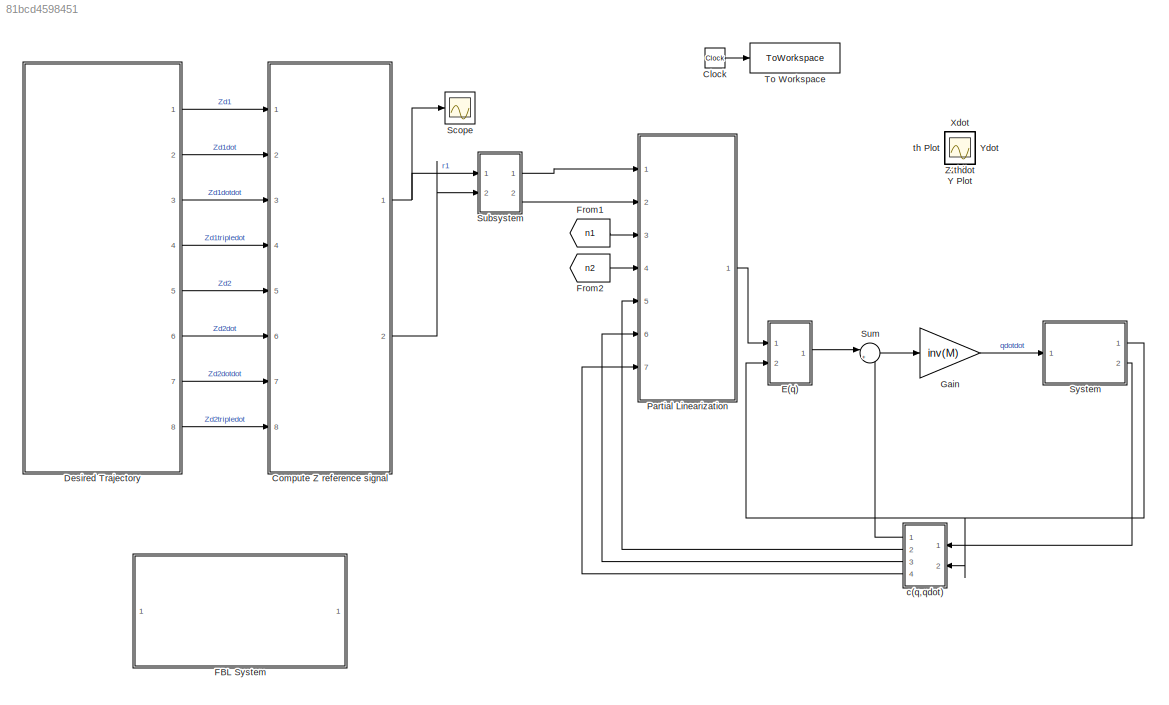
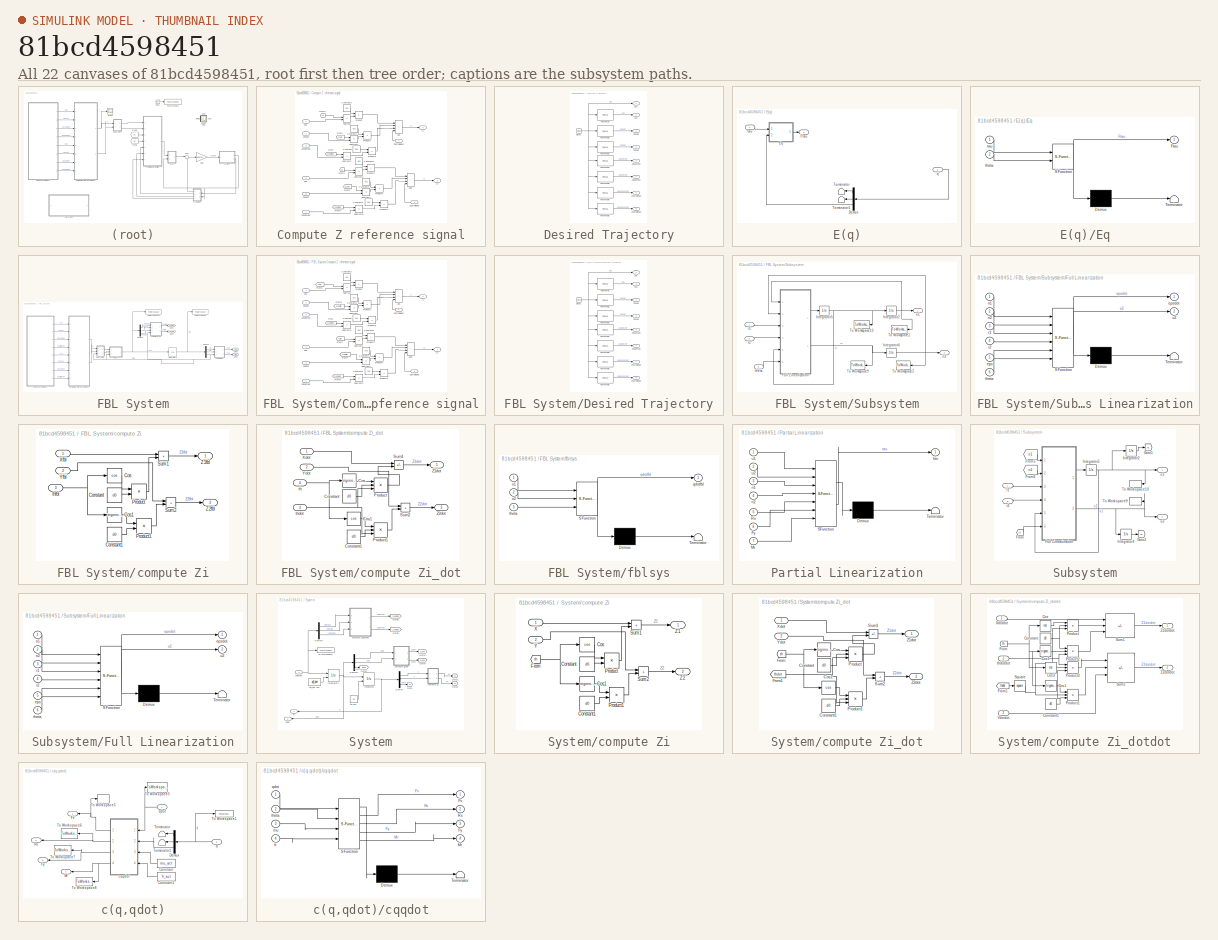
[diagram: thumbnail index - all 22 canvases of the model, root first then tree order]
MODEL slx_81bcd4598451
KIND model
CONFIG AbsTol = auto
CONFIG EnableMultiTasking = off
CONFIG FixedStep = auto
CONFIG MaxStep = auto
CONFIG MinStep = auto
CONFIG RelTol = 1e-3
CONFIG SampleTimeConstraint = Unconstrained
CONFIG SolverName = VariableStepAuto
CONFIG StartTime = 0.0
CONFIG StopTime = 50
BLOCK [Clock] Clock
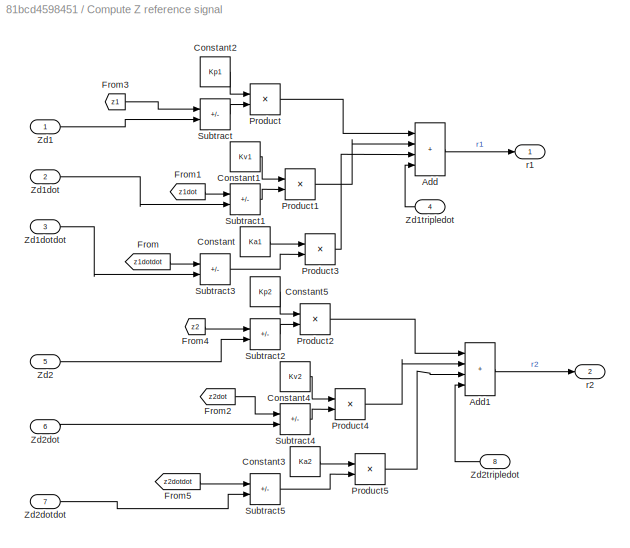
BLOCK [SubSystem] Compute Z reference signal
  Ports = [8, 2]
  RequestExecContextInheritance = off
BLOCK [Sum] Compute Z reference signal/Add
  IconShape = rectangular
  Inputs = ++++
  Ports = [4, 1]
BLOCK [Sum] Compute Z reference signal/Add1
  IconShape = rectangular
  Inputs = ++++
  Ports = [4, 1]
BLOCK [Constant] Compute Z reference signal/Constant
  Value = Ka1
BLOCK [Constant] Compute Z reference signal/Constant1
  Value = Kv1
BLOCK [Constant] Compute Z reference signal/Constant2
  Value = Kp1
BLOCK [Constant] Compute Z reference signal/Constant3
  Value = Ka2
BLOCK [Constant] Compute Z reference signal/Constant4
  Value = Kv2
BLOCK [Constant] Compute Z reference signal/Constant5
  Value = Kp2
BLOCK [From] Compute Z reference signal/From
  GotoTag = z1dotdot
  TagVisibility = global
BLOCK [From] Compute Z reference signal/From1
  GotoTag = z1dot
  TagVisibility = global
BLOCK [From] Compute Z reference signal/From2
  GotoTag = z2dot
  TagVisibility = global
BLOCK [From] Compute Z reference signal/From3
  GotoTag = z1
  TagVisibility = global
BLOCK [From] Compute Z reference signal/From4
  GotoTag = z2
  TagVisibility = global
BLOCK [From] Compute Z reference signal/From5
  GotoTag = z2dotdot
  TagVisibility = global
BLOCK [Product] Compute Z reference signal/Product
  Ports = [2, 1]
BLOCK [Product] Compute Z reference signal/Product1
  Ports = [2, 1]
BLOCK [Product] Compute Z reference signal/Product2
  Ports = [2, 1]
BLOCK [Product] Compute Z reference signal/Product3
  Ports = [2, 1]
BLOCK [Product] Compute Z reference signal/Product4
  Ports = [2, 1]
BLOCK [Product] Compute Z reference signal/Product5
  Ports = [2, 1]
BLOCK [Sum] Compute Z reference signal/Subtract
  IconShape = rectangular
  Inputs = -+
  Ports = [2, 1]
BLOCK [Sum] Compute Z reference signal/Subtract1
  IconShape = rectangular
  Inputs = -+
  Ports = [2, 1]
BLOCK [Sum] Compute Z reference signal/Subtract2
  IconShape = rectangular
  Inputs = -+
  Ports = [2, 1]
BLOCK [Sum] Compute Z reference signal/Subtract3
  IconShape = rectangular
  Inputs = -+
  Ports = [2, 1]
BLOCK [Sum] Compute Z reference signal/Subtract4
  IconShape = rectangular
  Inputs = -+
  Ports = [2, 1]
BLOCK [Sum] Compute Z reference signal/Subtract5
  IconShape = rectangular
  Inputs = -+
  Ports = [2, 1]
BLOCK [Inport] Compute Z reference signal/Zd1
BLOCK [Inport] Compute Z reference signal/Zd1dot
  Port = 2
BLOCK [Inport] Compute Z reference signal/Zd1dotdot
  Port = 3
BLOCK [Inport] Compute Z reference signal/Zd1tripledot
  Port = 4
BLOCK [Inport] Compute Z reference signal/Zd2
  Port = 5
BLOCK [Inport] Compute Z reference signal/Zd2dot
  Port = 6
BLOCK [Inport] Compute Z reference signal/Zd2dotdot
  Port = 7
BLOCK [Inport] Compute Z reference signal/Zd2tripledot
  Port = 8
BLOCK [Outport] Compute Z reference signal/r1
BLOCK [Outport] Compute Z reference signal/r2
  Port = 2
BLOCK [SubSystem] Desired Trajectory
  Ports = [0, 8]
  RequestExecContextInheritance = off
BLOCK [Clock] Desired Trajectory/Clock1
BLOCK [Polyval] Desired Trajectory/Polynomial
  Coefs = [-0.002 0.1 0.1 0]
BLOCK [Polyval] Desired Trajectory/Polynomial1
  Coefs = [-0.006 0.2 0.1]
BLOCK [Polyval] Desired Trajectory/Polynomial2
  Coefs = [1]
BLOCK [Polyval] Desired Trajectory/Polynomial3
  Coefs = [-0.012 0.2]
BLOCK [Polyval] Desired Trajectory/Polynomial4
  Coefs = [0]
BLOCK [Polyval] Desired Trajectory/Polynomial5
  Coefs = [-0.012 0.2]
BLOCK [Polyval] Desired Trajectory/Polynomial6
  Coefs = [0]
BLOCK [Outport] Desired Trajectory/Zd1
BLOCK [Outport] Desired Trajectory/Zd1dot
  Port = 2
BLOCK [Outport] Desired Trajectory/Zd1dotdot
  Port = 3
BLOCK [Outport] Desired Trajectory/Zd1tripledot
  Port = 4
BLOCK [Outport] Desired Trajectory/Zd2
  Port = 5
BLOCK [Outport] Desired Trajectory/Zd2dot
  Port = 6
BLOCK [Outport] Desired Trajectory/Zd2dotdot
  Port = 7
BLOCK [Outport] Desired Trajectory/Zd2tripledot
  Port = 8
BLOCK [SubSystem] E(q)
  Ports = [2, 1]
  RequestExecContextInheritance = off
BLOCK [Demux] E(q)/Demux
  Outputs = 3
  Ports = [1, 3]
BLOCK [SubSystem] E(q)/Eq
  ErrorFcn = Stateflow.Translate.translate
  MinAlgLoopOccurrences = on
  PermitHierarchicalResolution = ExplicitOnly
  Ports = [2, 1]
  RequestExecContextInheritance = off
  SFBlockType = MATLAB Function
  TreatAsAtomicUnit = on
BLOCK [Demux] E(q)/Eq/ Demux 
  Outputs = 1
  Ports = [1, 1]
BLOCK [S-Function] E(q)/Eq/ SFunction 
  EnableBusSupport = on
  FunctionName = sf_sfun
  Parameters = r,t
  PortCounts = [2 2]
  Ports = [2, 2]
  SFcnIsStateOwnerBlock = off
  SFunctionDeploymentMode = off
  Tag = Stateflow S-Function 1
BLOCK [Terminator] E(q)/Eq/ Terminator 
BLOCK [Outport] E(q)/Eq/Ftau
BLOCK [Inport] E(q)/Eq/tau
BLOCK [Inport] E(q)/Eq/theta
  Port = 2
BLOCK [Outport] E(q)/Ftau
BLOCK [Terminator] E(q)/Terminator
BLOCK [Terminator] E(q)/Terminator1
BLOCK [Inport] E(q)/q
  Port = 2
BLOCK [Inport] E(q)/tau
BLOCK [SubSystem] FBL System
  Ports = []
  RequestExecContextInheritance = off
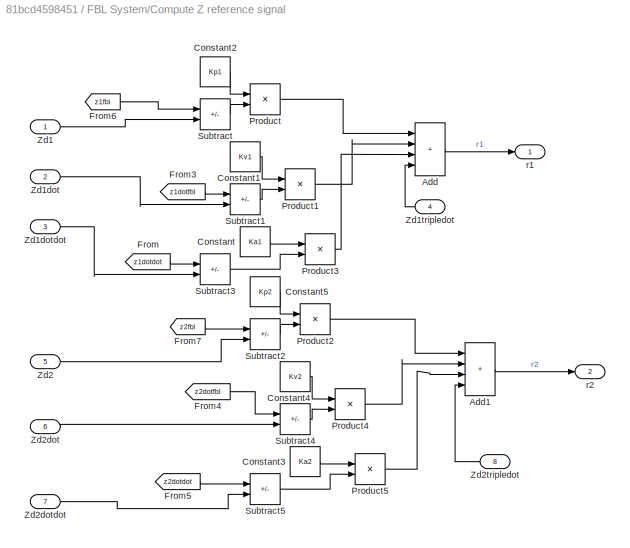
BLOCK [SubSystem] FBL System/Compute Z reference signal
  Ports = [8, 2]
  RequestExecContextInheritance = off
BLOCK [Sum] FBL System/Compute Z reference signal/Add
  IconShape = rectangular
  Inputs = ++++
  Ports = [4, 1]
BLOCK [Sum] FBL System/Compute Z reference signal/Add1
  IconShape = rectangular
  Inputs = ++++
  Ports = [4, 1]
BLOCK [Constant] FBL System/Compute Z reference signal/Constant
  Value = Ka1
BLOCK [Constant] FBL System/Compute Z reference signal/Constant1
  Value = Kv1
BLOCK [Constant] FBL System/Compute Z reference signal/Constant2
  Value = Kp1
BLOCK [Constant] FBL System/Compute Z reference signal/Constant3
  Value = Ka2
BLOCK [Constant] FBL System/Compute Z reference signal/Constant4
  Value = Kv2
BLOCK [Constant] FBL System/Compute Z reference signal/Constant5
  Value = Kp2
BLOCK [From] FBL System/Compute Z reference signal/From
  GotoTag = z1dotdot
  TagVisibility = global
BLOCK [From] FBL System/Compute Z reference signal/From3
  GotoTag = z1dotfbl
  TagVisibility = global
BLOCK [From] FBL System/Compute Z reference signal/From4
  GotoTag = z2dotfbl
  TagVisibility = global
BLOCK [From] FBL System/Compute Z reference signal/From5
  GotoTag = z2dotdot
  TagVisibility = global
BLOCK [From] FBL System/Compute Z reference signal/From6
  GotoTag = z1fbl
  TagVisibility = global
BLOCK [From] FBL System/Compute Z reference signal/From7
  GotoTag = z2fbl
  TagVisibility = global
BLOCK [Product] FBL System/Compute Z reference signal/Product
  Ports = [2, 1]
BLOCK [Product] FBL System/Compute Z reference signal/Product1
  Ports = [2, 1]
BLOCK [Product] FBL System/Compute Z reference signal/Product2
  Ports = [2, 1]
BLOCK [Product] FBL System/Compute Z reference signal/Product3
  Ports = [2, 1]
BLOCK [Product] FBL System/Compute Z reference signal/Product4
  Ports = [2, 1]
BLOCK [Product] FBL System/Compute Z reference signal/Product5
  Ports = [2, 1]
BLOCK [Sum] FBL System/Compute Z reference signal/Subtract
  IconShape = rectangular
  Inputs = -+
  Ports = [2, 1]
BLOCK [Sum] FBL System/Compute Z reference signal/Subtract1
  IconShape = rectangular
  Inputs = -+
  Ports = [2, 1]
BLOCK [Sum] FBL System/Compute Z reference signal/Subtract2
  IconShape = rectangular
  Inputs = -+
  Ports = [2, 1]
BLOCK [Sum] FBL System/Compute Z reference signal/Subtract3
  IconShape = rectangular
  Inputs = -+
  Ports = [2, 1]
BLOCK [Sum] FBL System/Compute Z reference signal/Subtract4
  IconShape = rectangular
  Inputs = -+
  Ports = [2, 1]
BLOCK [Sum] FBL System/Compute Z reference signal/Subtract5
  IconShape = rectangular
  Inputs = -+
  Ports = [2, 1]
BLOCK [Inport] FBL System/Compute Z reference signal/Zd1
BLOCK [Inport] FBL System/Compute Z reference signal/Zd1dot
  Port = 2
BLOCK [Inport] FBL System/Compute Z reference signal/Zd1dotdot
  Port = 3
BLOCK [Inport] FBL System/Compute Z reference signal/Zd1tripledot
  Port = 4
BLOCK [Inport] FBL System/Compute Z reference signal/Zd2
  Port = 5
BLOCK [Inport] FBL System/Compute Z reference signal/Zd2dot
  Port = 6
BLOCK [Inport] FBL System/Compute Z reference signal/Zd2dotdot
  Port = 7
BLOCK [Inport] FBL System/Compute Z reference signal/Zd2tripledot
  Port = 8
BLOCK [Outport] FBL System/Compute Z reference signal/r1
BLOCK [Outport] FBL System/Compute Z reference signal/r2
  Port = 2
BLOCK [Demux] FBL System/Demux2
  Outputs = 3
  Ports = [1, 3]
BLOCK [Demux] FBL System/Demux3
  Outputs = 3
  Ports = [1, 3]
BLOCK [SubSystem] FBL System/Desired Trajectory
  Ports = [0, 8]
  RequestExecContextInheritance = off
BLOCK [Clock] FBL System/Desired Trajectory/Clock1
BLOCK [Polyval] FBL System/Desired Trajectory/Polynomial
  Coefs = [-0.002 0.1 0.1 0]
BLOCK [Polyval] FBL System/Desired Trajectory/Polynomial1
  Coefs = [-0.006 0.2 0.1]
BLOCK [Polyval] FBL System/Desired Trajectory/Polynomial2
  Coefs = [1]
BLOCK [Polyval] FBL System/Desired Trajectory/Polynomial3
  Coefs = [-0.012 0.2]
BLOCK [Polyval] FBL System/Desired Trajectory/Polynomial4
  Coefs = [0]
BLOCK [Polyval] FBL System/Desired Trajectory/Polynomial5
  Coefs = [-0.012 0.2]
BLOCK [Polyval] FBL System/Desired Trajectory/Polynomial6
  Coefs = [0]
BLOCK [Outport] FBL System/Desired Trajectory/Zd1
BLOCK [Outport] FBL System/Desired Trajectory/Zd1dot
  Port = 2
BLOCK [Outport] FBL System/Desired Trajectory/Zd1dotdot
  Port = 3
BLOCK [Outport] FBL System/Desired Trajectory/Zd1tripledot
  Port = 4
BLOCK [Outport] FBL System/Desired Trajectory/Zd2
  Port = 5
BLOCK [Outport] FBL System/Desired Trajectory/Zd2dot
  Port = 6
BLOCK [Outport] FBL System/Desired Trajectory/Zd2dotdot
  Port = 7
BLOCK [Outport] FBL System/Desired Trajectory/Zd2tripledot
  Port = 8
BLOCK [Goto] FBL System/Goto1
  GotoTag = z1dotfbl
  TagVisibility = global
BLOCK [Goto] FBL System/Goto2
  GotoTag = z2dotfbl
  TagVisibility = global
BLOCK [Goto] FBL System/Goto3
  GotoTag = z1fbl
  TagVisibility = global
BLOCK [Goto] FBL System/Goto4
  GotoTag = z2fbl
  TagVisibility = global
BLOCK [Integrator] FBL System/Integrator3
  InitialCondition = q0
  Ports = [1, 1]
BLOCK [SubSystem] FBL System/Subsystem
  Ports = [3, 2]
  RequestExecContextInheritance = off
BLOCK [SubSystem] FBL System/Subsystem/Full Linearization
  ErrorFcn = Stateflow.Translate.translate
  MinAlgLoopOccurrences = on
  PermitHierarchicalResolution = ExplicitOnly
  Ports = [6, 2]
  RequestExecContextInheritance = off
  SFBlockType = MATLAB Function
  TreatAsAtomicUnit = on
BLOCK [Demux] FBL System/Subsystem/Full Linearization/ Demux 
  Outputs = 1
  Ports = [1, 1]
BLOCK [S-Function] FBL System/Subsystem/Full Linearization/ SFunction 
  EnableBusSupport = on
  FunctionName = sf_sfun
  Parameters = d0
  PortCounts = [6 3]
  Ports = [6, 3]
  SFcnIsStateOwnerBlock = off
  SFunctionDeploymentMode = off
  Tag = Stateflow S-Function 6
BLOCK [Terminator] FBL System/Subsystem/Full Linearization/ Terminator 
BLOCK [Inport] FBL System/Subsystem/Full Linearization/eps
  Port = 5
BLOCK [Outport] FBL System/Subsystem/Full Linearization/epsdot
BLOCK [Inport] FBL System/Subsystem/Full Linearization/n1
BLOCK [Inport] FBL System/Subsystem/Full Linearization/n2
  Port = 2
BLOCK [Inport] FBL System/Subsystem/Full Linearization/r1
  Port = 3
BLOCK [Inport] FBL System/Subsystem/Full Linearization/r2
  Port = 4
BLOCK [Inport] FBL System/Subsystem/Full Linearization/theta
  Port = 6
BLOCK [Outport] FBL System/Subsystem/Full Linearization/u2
  Port = 2
BLOCK [Integrator] FBL System/Subsystem/Integrator2
  Ports = [1, 1]
BLOCK [Integrator] FBL System/Subsystem/Integrator4
  Ports = [1, 1]
BLOCK [Integrator] FBL System/Subsystem/Integrator5
  Ports = [1, 1]
BLOCK [ToWorkspace] FBL System/Subsystem/To Workspace1
  FixptAsFi = on
  MaxDataPoints = inf
  Ports = [1]
  SampleTime = -1
  VariableName = n1fbl
BLOCK [ToWorkspace] FBL System/Subsystem/To Workspace10
  FixptAsFi = on
  MaxDataPoints = inf
  Ports = [1]
  SampleTime = -1
  VariableName = u1fbl
BLOCK [ToWorkspace] FBL System/Subsystem/To Workspace2
  FixptAsFi = on
  MaxDataPoints = inf
  Ports = [1]
  SampleTime = -1
  VariableName = n2fbl
BLOCK [ToWorkspace] FBL System/Subsystem/To Workspace9
  FixptAsFi = on
  MaxDataPoints = inf
  Ports = [1]
  SampleTime = -1
  VariableName = u2fbl
BLOCK [Outport] FBL System/Subsystem/n1
BLOCK [Outport] FBL System/Subsystem/n2
  Port = 2
BLOCK [Inport] FBL System/Subsystem/r1
BLOCK [Inport] FBL System/Subsystem/r2
  Port = 2
BLOCK [Inport] FBL System/Subsystem/theta
  Port = 3
BLOCK [ToWorkspace] FBL System/To Workspace13
  FixptAsFi = on
  MaxDataPoints = inf
  Ports = [1]
  SampleTime = -1
  VariableName = qdotfbl
BLOCK [ToWorkspace] FBL System/To Workspace2
  FixptAsFi = on
  MaxDataPoints = inf
  Ports = [1]
  SampleTime = -1
  VariableName = qfbl
BLOCK [SubSystem] FBL System/compute Zi
  Ports = [3, 2]
  RequestExecContextInheritance = off
BLOCK [Constant] FBL System/compute Zi/Constant
  Value = d0
BLOCK [Constant] FBL System/compute Zi/Constant1
  Value = d0
BLOCK [Trigonometry] FBL System/compute Zi/Cos
  Operator = cos
  Ports = [1, 1]
BLOCK [Trigonometry] FBL System/compute Zi/Cos1
  Ports = [1, 1]
BLOCK [Product] FBL System/compute Zi/Product
  Ports = [2, 1]
BLOCK [Product] FBL System/compute Zi/Product1
  Ports = [2, 1]
BLOCK [Sum] FBL System/compute Zi/Sum1
  IconShape = rectangular
  Ports = [2, 1]
BLOCK [Sum] FBL System/compute Zi/Sum2
  IconShape = rectangular
  Ports = [2, 1]
BLOCK [Inport] FBL System/compute Zi/Xfbl
BLOCK [Inport] FBL System/compute Zi/Yfbl
  Port = 2
BLOCK [Outport] FBL System/compute Zi/Z1fbl
BLOCK [Outport] FBL System/compute Zi/Z2fbl
  Port = 2
BLOCK [Inport] FBL System/compute Zi/thfbl
  Port = 3
BLOCK [SubSystem] FBL System/compute Zi_dot
  Ports = [4, 2]
  RequestExecContextInheritance = off
BLOCK [Constant] FBL System/compute Zi_dot/Constant
  Value = d0
BLOCK [Constant] FBL System/compute Zi_dot/Constant1
  Value = d0
BLOCK [Trigonometry] FBL System/compute Zi_dot/Cos
  Ports = [1, 1]
BLOCK [Trigonometry] FBL System/compute Zi_dot/Cos1
  Operator = cos
  Ports = [1, 1]
BLOCK [Product] FBL System/compute Zi_dot/Product
  Inputs = 3
  Ports = [3, 1]
BLOCK [Product] FBL System/compute Zi_dot/Product1
  Inputs = 3
  Ports = [3, 1]
BLOCK [Sum] FBL System/compute Zi_dot/Sum1
  IconShape = rectangular
  Inputs = +-
  Ports = [2, 1]
BLOCK [Sum] FBL System/compute Zi_dot/Sum2
  IconShape = rectangular
  Ports = [2, 1]
BLOCK [Inport] FBL System/compute Zi_dot/Xdot
BLOCK [Inport] FBL System/compute Zi_dot/Ydot
  Port = 2
BLOCK [Outport] FBL System/compute Zi_dot/Z1dot
BLOCK [Outport] FBL System/compute Zi_dot/Z2dot
  Port = 2
BLOCK [Inport] FBL System/compute Zi_dot/th
  Port = 4
BLOCK [Inport] FBL System/compute Zi_dot/thdot
  Port = 3
BLOCK [SubSystem] FBL System/fblsys
  ErrorFcn = Stateflow.Translate.translate
  PermitHierarchicalResolution = ExplicitOnly
  Ports = [3, 1]
  RequestExecContextInheritance = off
  SFBlockType = MATLAB Function
  TreatAsAtomicUnit = on
BLOCK [Demux] FBL System/fblsys/ Demux 
  Outputs = 1
  Ports = [1, 1]
BLOCK [S-Function] FBL System/fblsys/ SFunction 
  EnableBusSupport = on
  FunctionName = sf_sfun
  Parameters = d0
  PortCounts = [3 2]
  Ports = [3, 2]
  SFcnIsStateOwnerBlock = off
  SFunctionDeploymentMode = off
  Tag = Stateflow S-Function 4
BLOCK [Terminator] FBL System/fblsys/ Terminator 
BLOCK [Inport] FBL System/fblsys/n1
BLOCK [Inport] FBL System/fblsys/n2
  Port = 2
BLOCK [Outport] FBL System/fblsys/qdotfbl
BLOCK [Inport] FBL System/fblsys/theta
  Port = 3
BLOCK [From] From1
  GotoTag = n1
  TagVisibility = global
BLOCK [From] From2
  GotoTag = n2
  TagVisibility = global
BLOCK [Gain] Gain
  Gain = inv(M)
  Multiplication = Matrix(K*u)
BLOCK [SubSystem] Partial Linearization
  ErrorFcn = Stateflow.Translate.translate
  MinAlgLoopOccurrences = on
  PermitHierarchicalResolution = ExplicitOnly
  Ports = [7, 1]
  RequestExecContextInheritance = off
  SFBlockType = MATLAB Function
  TreatAsAtomicUnit = on
BLOCK [Demux] Partial Linearization/ Demux 
  Outputs = 1
  Ports = [1, 1]
BLOCK [S-Function] Partial Linearization/ SFunction 
  EnableBusSupport = on
  FunctionName = sf_sfun
  Parameters = I,d0,m,r,t
  PortCounts = [7 2]
  Ports = [7, 2]
  SFcnIsStateOwnerBlock = off
  SFunctionDeploymentMode = off
  Tag = Stateflow S-Function 3
BLOCK [Terminator] Partial Linearization/ Terminator 
BLOCK [Inport] Partial Linearization/Fy
  Port = 6
BLOCK [Inport] Partial Linearization/Mr
  Port = 7
BLOCK [Inport] Partial Linearization/Rx
  Port = 5
BLOCK [Inport] Partial Linearization/n1
  Port = 3
BLOCK [Inport] Partial Linearization/n2
  Port = 4
BLOCK [Outport] Partial Linearization/tau
BLOCK [Inport] Partial Linearization/u1
BLOCK [Inport] Partial Linearization/u2
  Port = 2
BLOCK [Scope] Scope
  Floating = off
  NumInputPorts = 1
  Ports = [1]
  ScopeSpecificationString = Simulink.scopes.TimeScopeBlockCfg('CurrentConfiguration', extmgr.ConfigurationSet(extmgr.Configuration('Core','General UI',true),extmgr.Configuration('Core','Source UI',true),extmgr.Configuration('Sources','WiredSimulink',true,'DataLoggingVariableName','ScopeData3'),extmgr.Configuration('Visuals','Time Domain',true,'SerializedDisplays',{struct('MinYLimReal','-27.35782','MaxYLimReal','219.81849','Y...<+1371ch>
BLOCK [SubSystem] Subsystem
  Ports = [2, 2]
  RequestExecContextInheritance = off
BLOCK [From] Subsystem/From
  GotoTag = th
  TagVisibility = global
BLOCK [From] Subsystem/From5
  GotoTag = n1
  TagVisibility = global
BLOCK [From] Subsystem/From6
  GotoTag = n2
  TagVisibility = global
BLOCK [SubSystem] Subsystem/Full Linearization
  ErrorFcn = Stateflow.Translate.translate
  MinAlgLoopOccurrences = on
  PermitHierarchicalResolution = ExplicitOnly
  Ports = [6, 2]
  RequestExecContextInheritance = off
  SFBlockType = MATLAB Function
  TreatAsAtomicUnit = on
BLOCK [Demux] Subsystem/Full Linearization/ Demux 
  Outputs = 1
  Ports = [1, 1]
BLOCK [S-Function] Subsystem/Full Linearization/ SFunction 
  EnableBusSupport = on
  FunctionName = sf_sfun
  Parameters = d0
  PortCounts = [6 3]
  Ports = [6, 3]
  SFcnIsStateOwnerBlock = off
  SFunctionDeploymentMode = off
  Tag = Stateflow S-Function 5
BLOCK [Terminator] Subsystem/Full Linearization/ Terminator 
BLOCK [Inport] Subsystem/Full Linearization/eps
  Port = 5
BLOCK [Outport] Subsystem/Full Linearization/epsdot
BLOCK [Inport] Subsystem/Full Linearization/n1
BLOCK [Inport] Subsystem/Full Linearization/n2
  Port = 2
BLOCK [Inport] Subsystem/Full Linearization/r1
  Port = 3
BLOCK [Inport] Subsystem/Full Linearization/r2
  Port = 4
BLOCK [Inport] Subsystem/Full Linearization/theta
  Port = 6
BLOCK [Outport] Subsystem/Full Linearization/u2
  Port = 2
BLOCK [Goto] Subsystem/Goto1
  GotoTag = n1
  TagVisibility = global
BLOCK [Goto] Subsystem/Goto2
  GotoTag = n2
  TagVisibility = global
BLOCK [Integrator] Subsystem/Integrator2
  Ports = [1, 1]
BLOCK [Integrator] Subsystem/Integrator4
  Ports = [1, 1]
BLOCK [Integrator] Subsystem/Integrator5
  Ports = [1, 1]
BLOCK [ToWorkspace] Subsystem/To Workspace10
  FixptAsFi = on
  MaxDataPoints = inf
  Ports = [1]
  SampleTime = -1
  VariableName = u1
BLOCK [ToWorkspace] Subsystem/To Workspace9
  FixptAsFi = on
  MaxDataPoints = inf
  Ports = [1]
  SampleTime = -1
  VariableName = u2
BLOCK [Inport] Subsystem/r1
BLOCK [Inport] Subsystem/r2
  Port = 2
BLOCK [Outport] Subsystem/u1
BLOCK [Outport] Subsystem/u2
  Port = 2
BLOCK [Sum] Sum
  Inputs = |+-
  Ports = [2, 1]
BLOCK [SubSystem] System
  Ports = [1, 2]
  RequestExecContextInheritance = off
BLOCK [Demux] System/Demux
  Outputs = 3
  Ports = [1, 3]
BLOCK [Demux] System/Demux1
  Outputs = 3
  Ports = [1, 3]
BLOCK [Demux] System/Demux4
  Outputs = 3
  Ports = [1, 3]
BLOCK [Goto] System/Goto
  GotoTag = th
  TagVisibility = global
BLOCK [Goto] System/Goto1
  GotoTag = z1
  TagVisibility = global
BLOCK [Goto] System/Goto2
  GotoTag = z2
  TagVisibility = global
BLOCK [Goto] System/Goto3
  GotoTag = z1dot
  TagVisibility = global
BLOCK [Goto] System/Goto4
  GotoTag = z2dot
  TagVisibility = global
BLOCK [Goto] System/Goto5
  GotoTag = z1dotdot
  TagVisibility = global
BLOCK [Goto] System/Goto6
  GotoTag = z2dotdot
  TagVisibility = global
BLOCK [Goto] System/Goto7
  GotoTag = thdot
  TagVisibility = global
BLOCK [Integrator] System/Integrator
  InitialConditionSource = external
  Ports = [2, 1]
BLOCK [Integrator] System/Integrator1
  InitialConditionSource = external
  Ports = [2, 1]
BLOCK [ToWorkspace] System/To Workspace4
  FixptAsFi = on
  MaxDataPoints = inf
  Ports = [1]
  SampleTime = -1
  VariableName = qdotdot
BLOCK [SubSystem] System/compute Zi
  Ports = [2, 2]
  RequestExecContextInheritance = off
BLOCK [Constant] System/compute Zi/Constant
  Value = d0
BLOCK [Constant] System/compute Zi/Constant1
  Value = d0
BLOCK [Trigonometry] System/compute Zi/Cos
  Operator = cos
  Ports = [1, 1]
BLOCK [Trigonometry] System/compute Zi/Cos1
  Ports = [1, 1]
BLOCK [From] System/compute Zi/From
  GotoTag = th
  TagVisibility = global
BLOCK [Product] System/compute Zi/Product
  Ports = [2, 1]
BLOCK [Product] System/compute Zi/Product1
  Ports = [2, 1]
BLOCK [Sum] System/compute Zi/Sum1
  IconShape = rectangular
  Ports = [2, 1]
BLOCK [Sum] System/compute Zi/Sum2
  IconShape = rectangular
  Ports = [2, 1]
BLOCK [Inport] System/compute Zi/X
BLOCK [Inport] System/compute Zi/Y
  Port = 2
BLOCK [Outport] System/compute Zi/Z1
BLOCK [Outport] System/compute Zi/Z2
  Port = 2
BLOCK [SubSystem] System/compute Zi_dot
  Ports = [2, 2]
  RequestExecContextInheritance = off
BLOCK [Constant] System/compute Zi_dot/Constant
  Value = d0
BLOCK [Constant] System/compute Zi_dot/Constant1
  Value = d0
BLOCK [Trigonometry] System/compute Zi_dot/Cos
  Ports = [1, 1]
BLOCK [Trigonometry] System/compute Zi_dot/Cos1
  Operator = cos
  Ports = [1, 1]
BLOCK [From] System/compute Zi_dot/From
  GotoTag = th
  TagVisibility = global
BLOCK [From] System/compute Zi_dot/From1
  GotoTag = thdot
  TagVisibility = global
BLOCK [Product] System/compute Zi_dot/Product
  Inputs = 3
  Ports = [3, 1]
BLOCK [Product] System/compute Zi_dot/Product1
  Inputs = 3
  Ports = [3, 1]
BLOCK [Sum] System/compute Zi_dot/Sum1
  IconShape = rectangular
  Inputs = +-
  Ports = [2, 1]
BLOCK [Sum] System/compute Zi_dot/Sum2
  IconShape = rectangular
  Ports = [2, 1]
BLOCK [Inport] System/compute Zi_dot/Xdot
BLOCK [Inport] System/compute Zi_dot/Ydot
  Port = 2
BLOCK [Outport] System/compute Zi_dot/Z1dot
BLOCK [Outport] System/compute Zi_dot/Z2dot
  Port = 2
BLOCK [SubSystem] System/compute Zi_dotdot
  Ports = [3, 2]
  RequestExecContextInheritance = off
BLOCK [Constant] System/compute Zi_dotdot/Constant
  Value = d0
BLOCK [Constant] System/compute Zi_dotdot/Constant1
  Value = d0
BLOCK [Trigonometry] System/compute Zi_dotdot/Cos
  Operator = cos
  Ports = [1, 1]
BLOCK [Trigonometry] System/compute Zi_dotdot/Cos1
  Ports = [1, 1]
BLOCK [Trigonometry] System/compute Zi_dotdot/Cos2
  Ports = [1, 1]
BLOCK [Trigonometry] System/compute Zi_dotdot/Cos3
  Operator = cos
  Ports = [1, 1]
BLOCK [From] System/compute Zi_dotdot/From
  GotoTag = th
  TagVisibility = global
BLOCK [From] System/compute Zi_dotdot/From1
  GotoTag = thdot
  TagVisibility = global
BLOCK [Product] System/compute Zi_dotdot/Product
  Inputs = 3
  Ports = [3, 1]
BLOCK [Product] System/compute Zi_dotdot/Product1
  Inputs = 3
  Ports = [3, 1]
BLOCK [Product] System/compute Zi_dotdot/Product2
  Inputs = 3
  Ports = [3, 1]
BLOCK [Product] System/compute Zi_dotdot/Product3
  Inputs = 3
  Ports = [3, 1]
BLOCK [Math] System/compute Zi_dotdot/Square
  Operator = square
  Ports = [1, 1]
BLOCK [Sum] System/compute Zi_dotdot/Sum1
  IconShape = rectangular
  Inputs = +--
  Ports = [3, 1]
BLOCK [Sum] System/compute Zi_dotdot/Sum2
  IconShape = rectangular
  Inputs = +-+
  Ports = [3, 1]
BLOCK [Inport] System/compute Zi_dotdot/Xdotdot
BLOCK [Inport] System/compute Zi_dotdot/Ydotdot
  Port = 2
BLOCK [Outport] System/compute Zi_dotdot/Z1dotdot
BLOCK [Outport] System/compute Zi_dotdot/Z2dotdot
  Port = 2
BLOCK [Inport] System/compute Zi_dotdot/thdotdot
  Port = 3
BLOCK [Outport] System/q
BLOCK [Constant] System/q0 3x1
  Value = q0
BLOCK [Constant] System/q0_dot 3x2
  Value = q0_dot
BLOCK [Outport] System/qdot
  Port = 2
BLOCK [Inport] System/qdotdot
BLOCK [ToWorkspace] To Workspace
  FixptAsFi = on
  MaxDataPoints = inf
  Ports = [1]
  SampleTime = -1
  VariableName = t
BLOCK [Scope] X Plot
  Floating = off
  IOType = viewer
  NumInputPorts = 1
  Ports = []
  ScopeSpecificationString = Simulink.scopes.TimeScopeBlockCfg('CurrentConfiguration', extmgr.ConfigurationSet(extmgr.Configuration('Core','General UI',true),extmgr.Configuration('Core','Source UI',true),extmgr.Configuration('Sources','WiredSimulink',true),extmgr.Configuration('Visuals','Time Domain',true,'SerializedDisplays',{struct('MinYLimReal','-5340.5903','MaxYLimReal','1077.6371','YLabelReal','','MinYLimMag','  0.00000'...<+1460ch>
BLOCK [Scope] Xdot
  Floating = off
  IOType = viewer
  NumInputPorts = 1
  Ports = []
  ScopeSpecificationString = Simulink.scopes.TimeScopeBlockCfg('CurrentConfiguration', extmgr.ConfigurationSet(extmgr.Configuration('Core','General UI',true),extmgr.Configuration('Core','Source UI',true),extmgr.Configuration('Sources','WiredSimulink',true,'DataLoggingVariableName','ScopeData3'),extmgr.Configuration('Visuals','Time Domain',true,'SerializedDisplays',{struct('MinYLimReal','-12.71031','MaxYLimReal','30.58391','YL...<+1378ch>
BLOCK [Scope] Y Plot
  Floating = off
  IOType = viewer
  NumInputPorts = 1
  Ports = []
  ScopeSpecificationString = Simulink.scopes.TimeScopeBlockCfg('CurrentConfiguration', extmgr.ConfigurationSet(extmgr.Configuration('Core','General UI',true),extmgr.Configuration('Core','Source UI',true),extmgr.Configuration('Sources','WiredSimulink',true,'DataLoggingVariableName','ScopeData1'),extmgr.Configuration('Visuals','Time Domain',true,'SerializedDisplays',{struct('MinYLimReal','-129.67354','MaxYLimReal','1165.57949',...<+1495ch>
BLOCK [Scope] Ydot
  Floating = off
  IOType = viewer
  NumInputPorts = 1
  Ports = []
  ScopeSpecificationString = Simulink.scopes.TimeScopeBlockCfg('CurrentConfiguration', extmgr.ConfigurationSet(extmgr.Configuration('Core','General UI',true),extmgr.Configuration('Core','Source UI',true),extmgr.Configuration('Sources','WiredSimulink',true,'DataLoggingVariableName','ScopeData4'),extmgr.Configuration('Visuals','Time Domain',true,'SerializedDisplays',{struct('MinYLimReal','-48.35617','MaxYLimReal','46.35272','YL...<+1405ch>
BLOCK [Scope] Z1
  Floating = off
  IOType = viewer
  NumInputPorts = 1
  Ports = []
  ScopeSpecificationString = Simulink.scopes.TimeScopeBlockCfg('CurrentConfiguration', extmgr.ConfigurationSet(extmgr.Configuration('Core','General UI',true),extmgr.Configuration('Core','Source UI',true),extmgr.Configuration('Sources','WiredSimulink',true,'DataLoggingVariableName','ScopeData2'),extmgr.Configuration('Visuals','Time Domain',true,'SerializedDisplays',{struct('MinYLimReal','-74.34126','MaxYLimReal','669.07133','Y...<+1584ch>
BLOCK [Scope] Z2
  Floating = off
  IOType = viewer
  NumInputPorts = 1
  Ports = []
  ScopeSpecificationString = Simulink.scopes.TimeScopeBlockCfg('CurrentConfiguration', extmgr.ConfigurationSet(extmgr.Configuration('Core','General UI',true),extmgr.Configuration('Core','Source UI',true),extmgr.Configuration('Sources','WiredSimulink',true,'DataLoggingVariableName','ScopeData1'),extmgr.Configuration('Visuals','Time Domain',true,'SerializedDisplays',{struct('MinYLimReal','-10.00000','MaxYLimReal','59.0113','YLa...<+1513ch>
BLOCK [SubSystem] c(q,qdot)
  Ports = [2, 4]
  RequestExecContextInheritance = off
BLOCK [Constant] c(q,qdot)/Constant
  Value = mu_act
BLOCK [Constant] c(q,qdot)/Constant1
  Value = fr_act
BLOCK [Demux] c(q,qdot)/Demux
  Outputs = 3
  Ports = [1, 3]
BLOCK [Outport] c(q,qdot)/Fv
BLOCK [Outport] c(q,qdot)/Fy
  Port = 3
BLOCK [Outport] c(q,qdot)/Mr
  Port = 4
BLOCK [Outport] c(q,qdot)/Rx
  Port = 2
BLOCK [Terminator] c(q,qdot)/Terminator
BLOCK [Terminator] c(q,qdot)/Terminator1
BLOCK [ToWorkspace] c(q,qdot)/To Workspace1
  FixptAsFi = on
  MaxDataPoints = inf
  Ports = [1]
  SampleTime = -1
  VariableName = q
BLOCK [ToWorkspace] c(q,qdot)/To Workspace3
  FixptAsFi = on
  MaxDataPoints = inf
  Ports = [1]
  SampleTime = -1
  VariableName = qdot
BLOCK [ToWorkspace] c(q,qdot)/To Workspace5
  FixptAsFi = on
  MaxDataPoints = inf
  Ports = [1]
  SampleTime = -1
  VariableName = Fv
BLOCK [ToWorkspace] c(q,qdot)/To Workspace6
  FixptAsFi = on
  MaxDataPoints = inf
  Ports = [1]
  SampleTime = -1
  VariableName = Rx
BLOCK [ToWorkspace] c(q,qdot)/To Workspace7
  FixptAsFi = on
  MaxDataPoints = inf
  Ports = [1]
  SampleTime = -1
  VariableName = Fy
BLOCK [ToWorkspace] c(q,qdot)/To Workspace8
  FixptAsFi = on
  MaxDataPoints = inf
  Ports = [1]
  SampleTime = -1
  VariableName = Mr
BLOCK [SubSystem] c(q,qdot)/cqqdot
  ErrorFcn = Stateflow.Translate.translate
  PermitHierarchicalResolution = ExplicitOnly
  Ports = [4, 4]
  RequestExecContextInheritance = off
  SFBlockType = MATLAB Function
  TreatAsAtomicUnit = on
BLOCK [Demux] c(q,qdot)/cqqdot/ Demux 
  Outputs = 1
  Ports = [1, 1]
BLOCK [S-Function] c(q,qdot)/cqqdot/ SFunction 
  EnableBusSupport = on
  FunctionName = sf_sfun
  Parameters = a,b,g,m,t
  PortCounts = [4 5]
  Ports = [4, 5]
  SFcnIsStateOwnerBlock = off
  SFunctionDeploymentMode = off
  Tag = Stateflow S-Function 2
BLOCK [Terminator] c(q,qdot)/cqqdot/ Terminator 
BLOCK [Outport] c(q,qdot)/cqqdot/Fv
BLOCK [Outport] c(q,qdot)/cqqdot/Fy
  Port = 3
BLOCK [Outport] c(q,qdot)/cqqdot/Mr
  Port = 4
BLOCK [Outport] c(q,qdot)/cqqdot/Rx
  Port = 2
BLOCK [Inport] c(q,qdot)/cqqdot/fr
  Port = 4
BLOCK [Inport] c(q,qdot)/cqqdot/mu
  Port = 3
BLOCK [Inport] c(q,qdot)/cqqdot/qdot
BLOCK [Inport] c(q,qdot)/cqqdot/theta
  Port = 2
BLOCK [Inport] c(q,qdot)/q
  Port = 2
BLOCK [Inport] c(q,qdot)/qdot
BLOCK [Scope] th Plot
  Floating = off
  IOType = viewer
  NumInputPorts = 1
  Ports = []
  ScopeSpecificationString = Simulink.scopes.TimeScopeBlockCfg('CurrentConfiguration', extmgr.ConfigurationSet(extmgr.Configuration('Core','General UI',true),extmgr.Configuration('Core','Source UI',true),extmgr.Configuration('Sources','WiredSimulink',true,'DataLoggingVariableName','ScopeData2'),extmgr.Configuration('Visuals','Time Domain',true,'SerializedDisplays',{struct('MinYLimReal','-0.13021','MaxYLimReal','0.01447','YLab...<+1459ch>
BLOCK [Scope] thdot
  Floating = off
  IOType = viewer
  NumInputPorts = 1
  Ports = []
  ScopeSpecificationString = Simulink.scopes.TimeScopeBlockCfg('CurrentConfiguration', extmgr.ConfigurationSet(extmgr.Configuration('Core','General UI',true),extmgr.Configuration('Core','Source UI',true),extmgr.Configuration('Sources','WiredSimulink',true,'DataLoggingVariableName','ScopeData5'),extmgr.Configuration('Visuals','Time Domain',true,'SerializedDisplays',{struct('MinYLimReal','-137.39975','MaxYLimReal','80.83301','Y...<+1388ch>
LINE Clock:1 -> To Workspace:1
LINE Compute Z reference signal/Add1:1 -> Compute Z reference signal/r2:1
LINE Compute Z reference signal/Add:1 -> Compute Z reference signal/r1:1
LINE Compute Z reference signal/Constant1:1 -> Compute Z reference signal/Product1:1
LINE Compute Z reference signal/Constant2:1 -> Compute Z reference signal/Product:1
LINE Compute Z reference signal/Constant3:1 -> Compute Z reference signal/Product5:1
LINE Compute Z reference signal/Constant4:1 -> Compute Z reference signal/Product4:1
LINE Compute Z reference signal/Constant5:1 -> Compute Z reference signal/Product2:1
LINE Compute Z reference signal/Constant:1 -> Compute Z reference signal/Product3:1
LINE Compute Z reference signal/From1:1 -> Compute Z reference signal/Subtract1:1
LINE Compute Z reference signal/From2:1 -> Compute Z reference signal/Subtract4:1
LINE Compute Z reference signal/From3:1 -> Compute Z reference signal/Subtract:1
LINE Compute Z reference signal/From4:1 -> Compute Z reference signal/Subtract2:1
LINE Compute Z reference signal/From5:1 -> Compute Z reference signal/Subtract5:1
LINE Compute Z reference signal/From:1 -> Compute Z reference signal/Subtract3:1
LINE Compute Z reference signal/Product1:1 -> Compute Z reference signal/Add:2
LINE Compute Z reference signal/Product2:1 -> Compute Z reference signal/Add1:1
LINE Compute Z reference signal/Product3:1 -> Compute Z reference signal/Add:3
LINE Compute Z reference signal/Product4:1 -> Compute Z reference signal/Add1:2
LINE Compute Z reference signal/Product5:1 -> Compute Z reference signal/Add1:3
LINE Compute Z reference signal/Product:1 -> Compute Z reference signal/Add:1
LINE Compute Z reference signal/Subtract1:1 -> Compute Z reference signal/Product1:2
LINE Compute Z reference signal/Subtract2:1 -> Compute Z reference signal/Product2:2
LINE Compute Z reference signal/Subtract3:1 -> Compute Z reference signal/Product3:2
LINE Compute Z reference signal/Subtract4:1 -> Compute Z reference signal/Product4:2
LINE Compute Z reference signal/Subtract5:1 -> Compute Z reference signal/Product5:2
LINE Compute Z reference signal/Subtract:1 -> Compute Z reference signal/Product:2
LINE Compute Z reference signal/Zd1:1 -> Compute Z reference signal/Subtract:2
LINE Compute Z reference signal/Zd1dot:1 -> Compute Z reference signal/Subtract1:2
LINE Compute Z reference signal/Zd1dotdot:1 -> Compute Z reference signal/Subtract3:2
LINE Compute Z reference signal/Zd1tripledot:1 -> Compute Z reference signal/Add:4
LINE Compute Z reference signal/Zd2:1 -> Compute Z reference signal/Subtract2:2
LINE Compute Z reference signal/Zd2dot:1 -> Compute Z reference signal/Subtract4:2
LINE Compute Z reference signal/Zd2dotdot:1 -> Compute Z reference signal/Subtract5:2
LINE Compute Z reference signal/Zd2tripledot:1 -> Compute Z reference signal/Add1:4
NET Compute Z reference signal:1 -> Scope:1, Subsystem:1
LINE Compute Z reference signal:2 -> Subsystem:2
NET Desired Trajectory/Clock1:1 -> Desired Trajectory/Polynomial1:1, Desired Trajectory/Polynomial2:1, Desired Trajectory/Polynomial3:1, Desired Trajectory/Polynomial4:1, Desired Trajectory/Polynomial5:1, Desired Trajectory/Polynomial6:1, Desired Trajectory/Polynomial:1, Desired Trajectory/Zd1:1
LINE Desired Trajectory/Polynomial1:1 -> Desired Trajectory/Zd2dot:1
LINE Desired Trajectory/Polynomial2:1 -> Desired Trajectory/Zd1dot:1
LINE Desired Trajectory/Polynomial3:1 -> Desired Trajectory/Zd2dotdot:1
LINE Desired Trajectory/Polynomial4:1 -> Desired Trajectory/Zd1dotdot:1
LINE Desired Trajectory/Polynomial5:1 -> Desired Trajectory/Zd2tripledot:1
LINE Desired Trajectory/Polynomial6:1 -> Desired Trajectory/Zd1tripledot:1
LINE Desired Trajectory/Polynomial:1 -> Desired Trajectory/Zd2:1
LINE Desired Trajectory:1 -> Compute Z reference signal:1
LINE Desired Trajectory:2 -> Compute Z reference signal:2
LINE Desired Trajectory:3 -> Compute Z reference signal:3
LINE Desired Trajectory:4 -> Compute Z reference signal:4
LINE Desired Trajectory:5 -> Compute Z reference signal:5
LINE Desired Trajectory:6 -> Compute Z reference signal:6
LINE Desired Trajectory:7 -> Compute Z reference signal:7
LINE Desired Trajectory:8 -> Compute Z reference signal:8
LINE E(q)/Demux:1 -> E(q)/Terminator:1
LINE E(q)/Demux:2 -> E(q)/Terminator1:1
LINE E(q)/Demux:3 -> E(q)/Eq:2
LINE E(q)/Eq:1 -> E(q)/Ftau:1
LINE E(q)/q:1 -> E(q)/Demux:1
LINE E(q)/tau:1 -> E(q)/Eq:1
LINE E(q):1 -> Sum:1
LINE FBL System/Compute Z reference signal/Add1:1 -> FBL System/Compute Z reference signal/r2:1
LINE FBL System/Compute Z reference signal/Add:1 -> FBL System/Compute Z reference signal/r1:1
LINE FBL System/Compute Z reference signal/Constant1:1 -> FBL System/Compute Z reference signal/Product1:1
LINE FBL System/Compute Z reference signal/Constant2:1 -> FBL System/Compute Z reference signal/Product:1
LINE FBL System/Compute Z reference signal/Constant3:1 -> FBL System/Compute Z reference signal/Product5:1
LINE FBL System/Compute Z reference signal/Constant4:1 -> FBL System/Compute Z reference signal/Product4:1
LINE FBL System/Compute Z reference signal/Constant5:1 -> FBL System/Compute Z reference signal/Product2:1
LINE FBL System/Compute Z reference signal/Constant:1 -> FBL System/Compute Z reference signal/Product3:1
LINE FBL System/Compute Z reference signal/From3:1 -> FBL System/Compute Z reference signal/Subtract1:1
LINE FBL System/Compute Z reference signal/From4:1 -> FBL System/Compute Z reference signal/Subtract4:1
LINE FBL System/Compute Z reference signal/From5:1 -> FBL System/Compute Z reference signal/Subtract5:1
LINE FBL System/Compute Z reference signal/From6:1 -> FBL System/Compute Z reference signal/Subtract:1
LINE FBL System/Compute Z reference signal/From7:1 -> FBL System/Compute Z reference signal/Subtract2:1
LINE FBL System/Compute Z reference signal/From:1 -> FBL System/Compute Z reference signal/Subtract3:1
LINE FBL System/Compute Z reference signal/Product1:1 -> FBL System/Compute Z reference signal/Add:2
LINE FBL System/Compute Z reference signal/Product2:1 -> FBL System/Compute Z reference signal/Add1:1
LINE FBL System/Compute Z reference signal/Product3:1 -> FBL System/Compute Z reference signal/Add:3
LINE FBL System/Compute Z reference signal/Product4:1 -> FBL System/Compute Z reference signal/Add1:2
LINE FBL System/Compute Z reference signal/Product5:1 -> FBL System/Compute Z reference signal/Add1:3
LINE FBL System/Compute Z reference signal/Product:1 -> FBL System/Compute Z reference signal/Add:1
LINE FBL System/Compute Z reference signal/Subtract1:1 -> FBL System/Compute Z reference signal/Product1:2
LINE FBL System/Compute Z reference signal/Subtract2:1 -> FBL System/Compute Z reference signal/Product2:2
LINE FBL System/Compute Z reference signal/Subtract3:1 -> FBL System/Compute Z reference signal/Product3:2
LINE FBL System/Compute Z reference signal/Subtract4:1 -> FBL System/Compute Z reference signal/Product4:2
LINE FBL System/Compute Z reference signal/Subtract5:1 -> FBL System/Compute Z reference signal/Product5:2
LINE FBL System/Compute Z reference signal/Subtract:1 -> FBL System/Compute Z reference signal/Product:2
LINE FBL System/Compute Z reference signal/Zd1:1 -> FBL System/Compute Z reference signal/Subtract:2
LINE FBL System/Compute Z reference signal/Zd1dot:1 -> FBL System/Compute Z reference signal/Subtract1:2
LINE FBL System/Compute Z reference signal/Zd1dotdot:1 -> FBL System/Compute Z reference signal/Subtract3:2
LINE FBL System/Compute Z reference signal/Zd1tripledot:1 -> FBL System/Compute Z reference signal/Add:4
LINE FBL System/Compute Z reference signal/Zd2:1 -> FBL System/Compute Z reference signal/Subtract2:2
LINE FBL System/Compute Z reference signal/Zd2dot:1 -> FBL System/Compute Z reference signal/Subtract4:2
LINE FBL System/Compute Z reference signal/Zd2dotdot:1 -> FBL System/Compute Z reference signal/Subtract5:2
LINE FBL System/Compute Z reference signal/Zd2tripledot:1 -> FBL System/Compute Z reference signal/Add1:4
LINE FBL System/Compute Z reference signal:1 -> FBL System/Subsystem:1
LINE FBL System/Compute Z reference signal:2 -> FBL System/Subsystem:2
LINE FBL System/Demux2:1 -> FBL System/compute Zi_dot:1
LINE FBL System/Demux2:2 -> FBL System/compute Zi_dot:2
LINE FBL System/Demux2:3 -> FBL System/compute Zi_dot:3
LINE FBL System/Demux3:1 -> FBL System/compute Zi:1
LINE FBL System/Demux3:2 -> FBL System/compute Zi:2
NET FBL System/Demux3:3 -> FBL System/Subsystem:3, FBL System/compute Zi:3, FBL System/compute Zi_dot:4, FBL System/fblsys:3
NET FBL System/Desired Trajectory/Clock1:1 -> FBL System/Desired Trajectory/Polynomial1:1, FBL System/Desired Trajectory/Polynomial2:1, FBL System/Desired Trajectory/Polynomial3:1, FBL System/Desired Trajectory/Polynomial4:1, FBL System/Desired Trajectory/Polynomial5:1, FBL System/Desired Trajectory/Polynomial6:1, FBL System/Desired Trajectory/Polynomial:1, FBL System/Desired Trajectory/Zd1:1
LINE FBL System/Desired Trajectory/Polynomial1:1 -> FBL System/Desired Trajectory/Zd2dot:1
LINE FBL System/Desired Trajectory/Polynomial2:1 -> FBL System/Desired Trajectory/Zd1dot:1
LINE FBL System/Desired Trajectory/Polynomial3:1 -> FBL System/Desired Trajectory/Zd2dotdot:1
LINE FBL System/Desired Trajectory/Polynomial4:1 -> FBL System/Desired Trajectory/Zd1dotdot:1
LINE FBL System/Desired Trajectory/Polynomial5:1 -> FBL System/Desired Trajectory/Zd2tripledot:1
LINE FBL System/Desired Trajectory/Polynomial6:1 -> FBL System/Desired Trajectory/Zd1tripledot:1
LINE FBL System/Desired Trajectory/Polynomial:1 -> FBL System/Desired Trajectory/Zd2:1
LINE FBL System/Desired Trajectory:1 -> FBL System/Compute Z reference signal:1
LINE FBL System/Desired Trajectory:2 -> FBL System/Compute Z reference signal:2
LINE FBL System/Desired Trajectory:3 -> FBL System/Compute Z reference signal:3
LINE FBL System/Desired Trajectory:4 -> FBL System/Compute Z reference signal:4
LINE FBL System/Desired Trajectory:5 -> FBL System/Compute Z reference signal:5
LINE FBL System/Desired Trajectory:6 -> FBL System/Compute Z reference signal:6
LINE FBL System/Desired Trajectory:7 -> FBL System/Compute Z reference signal:7
LINE FBL System/Desired Trajectory:8 -> FBL System/Compute Z reference signal:8
NET FBL System/Integrator3:1 -> FBL System/Demux3:1, FBL System/To Workspace2:1
LINE FBL System/Subsystem/Full Linearization:1 -> FBL System/Subsystem/Integrator5:1
NET FBL System/Subsystem/Full Linearization:2 -> FBL System/Subsystem/Integrator4:1, FBL System/Subsystem/To Workspace9:1
NET FBL System/Subsystem/Integrator2:1 -> FBL System/Subsystem/Full Linearization:1, FBL System/Subsystem/To Workspace1:1, FBL System/Subsystem/n1:1
NET FBL System/Subsystem/Integrator4:1 -> FBL System/Subsystem/Full Linearization:2, FBL System/Subsystem/To Workspace2:1, FBL System/Subsystem/n2:1
NET FBL System/Subsystem/Integrator5:1 -> FBL System/Subsystem/Full Linearization:5, FBL System/Subsystem/Integrator2:1, FBL System/Subsystem/To Workspace10:1
LINE FBL System/Subsystem/r1:1 -> FBL System/Subsystem/Full Linearization:3
LINE FBL System/Subsystem/r2:1 -> FBL System/Subsystem/Full Linearization:4
LINE FBL System/Subsystem/theta:1 -> FBL System/Subsystem/Full Linearization:6
LINE FBL System/Subsystem:1 -> FBL System/fblsys:1
LINE FBL System/Subsystem:2 -> FBL System/fblsys:2
LINE FBL System/compute Zi/Constant1:1 -> FBL System/compute Zi/Product1:2
LINE FBL System/compute Zi/Constant:1 -> FBL System/compute Zi/Product:2
LINE FBL System/compute Zi/Cos1:1 -> FBL System/compute Zi/Product1:1
LINE FBL System/compute Zi/Cos:1 -> FBL System/compute Zi/Product:1
LINE FBL System/compute Zi/Product1:1 -> FBL System/compute Zi/Sum2:2
LINE FBL System/compute Zi/Product:1 -> FBL System/compute Zi/Sum1:2
LINE FBL System/compute Zi/Sum1:1 -> FBL System/compute Zi/Z1fbl:1
LINE FBL System/compute Zi/Sum2:1 -> FBL System/compute Zi/Z2fbl:1
LINE FBL System/compute Zi/Xfbl:1 -> FBL System/compute Zi/Sum1:1
LINE FBL System/compute Zi/Yfbl:1 -> FBL System/compute Zi/Sum2:1
NET FBL System/compute Zi/thfbl:1 -> FBL System/compute Zi/Cos1:1, FBL System/compute Zi/Cos:1
LINE FBL System/compute Zi:1 -> FBL System/Goto3:1
LINE FBL System/compute Zi:2 -> FBL System/Goto4:1
LINE FBL System/compute Zi_dot/Constant1:1 -> FBL System/compute Zi_dot/Product1:2
LINE FBL System/compute Zi_dot/Constant:1 -> FBL System/compute Zi_dot/Product:2
LINE FBL System/compute Zi_dot/Cos1:1 -> FBL System/compute Zi_dot/Product1:1
LINE FBL System/compute Zi_dot/Cos:1 -> FBL System/compute Zi_dot/Product:1
LINE FBL System/compute Zi_dot/Product1:1 -> FBL System/compute Zi_dot/Sum2:2
LINE FBL System/compute Zi_dot/Product:1 -> FBL System/compute Zi_dot/Sum1:2
LINE FBL System/compute Zi_dot/Sum1:1 -> FBL System/compute Zi_dot/Z1dot:1
LINE FBL System/compute Zi_dot/Sum2:1 -> FBL System/compute Zi_dot/Z2dot:1
LINE FBL System/compute Zi_dot/Xdot:1 -> FBL System/compute Zi_dot/Sum1:1
LINE FBL System/compute Zi_dot/Ydot:1 -> FBL System/compute Zi_dot/Sum2:1
NET FBL System/compute Zi_dot/th:1 -> FBL System/compute Zi_dot/Cos1:1, FBL System/compute Zi_dot/Cos:1
NET FBL System/compute Zi_dot/thdot:1 -> FBL System/compute Zi_dot/Product1:3, FBL System/compute Zi_dot/Product:3
LINE FBL System/compute Zi_dot:1 -> FBL System/Goto1:1
LINE FBL System/compute Zi_dot:2 -> FBL System/Goto2:1
NET FBL System/fblsys:1 -> FBL System/Demux2:1, FBL System/Integrator3:1, FBL System/To Workspace13:1
LINE From1:1 -> Partial Linearization:3
LINE From2:1 -> Partial Linearization:4
LINE Gain:1 -> System:1
LINE Partial Linearization:1 -> E(q):1
LINE Subsystem/From5:1 -> Subsystem/Full Linearization:1
LINE Subsystem/From6:1 -> Subsystem/Full Linearization:2
LINE Subsystem/From:1 -> Subsystem/Full Linearization:6
LINE Subsystem/Full Linearization:1 -> Subsystem/Integrator5:1
NET Subsystem/Full Linearization:2 -> Subsystem/Integrator4:1, Subsystem/To Workspace9:1, Subsystem/u2:1
LINE Subsystem/Integrator2:1 -> Subsystem/Goto1:1
LINE Subsystem/Integrator4:1 -> Subsystem/Goto2:1
NET Subsystem/Integrator5:1 -> Subsystem/Full Linearization:5, Subsystem/Integrator2:1, Subsystem/To Workspace10:1, Subsystem/u1:1
LINE Subsystem/r1:1 -> Subsystem/Full Linearization:3
LINE Subsystem/r2:1 -> Subsystem/Full Linearization:4
LINE Subsystem:1 -> Partial Linearization:1
LINE Subsystem:2 -> Partial Linearization:2
LINE Sum:1 -> Gain:1
LINE System/Demux1:1 -> System/compute Zi_dot:1
LINE System/Demux1:2 -> System/compute Zi_dot:2
LINE System/Demux1:3 -> System/Goto7:1
LINE System/Demux4:1 -> System/compute Zi_dotdot:1
LINE System/Demux4:2 -> System/compute Zi_dotdot:2
LINE System/Demux4:3 -> System/compute Zi_dotdot:3
LINE System/Demux:1 -> System/compute Zi:1
LINE System/Demux:2 -> System/compute Zi:2
LINE System/Demux:3 -> System/Goto:1
NET System/Integrator1:1 -> System/Demux1:1, System/Integrator:1, System/qdot:1
NET System/Integrator:1 -> System/Demux:1, System/q:1
LINE System/compute Zi/Constant1:1 -> System/compute Zi/Product1:2
LINE System/compute Zi/Constant:1 -> System/compute Zi/Product:2
LINE System/compute Zi/Cos1:1 -> System/compute Zi/Product1:1
LINE System/compute Zi/Cos:1 -> System/compute Zi/Product:1
NET System/compute Zi/From:1 -> System/compute Zi/Cos1:1, System/compute Zi/Cos:1
LINE System/compute Zi/Product1:1 -> System/compute Zi/Sum2:2
LINE System/compute Zi/Product:1 -> System/compute Zi/Sum1:2
LINE System/compute Zi/Sum1:1 -> System/compute Zi/Z1:1
LINE System/compute Zi/Sum2:1 -> System/compute Zi/Z2:1
LINE System/compute Zi/X:1 -> System/compute Zi/Sum1:1
LINE System/compute Zi/Y:1 -> System/compute Zi/Sum2:1
LINE System/compute Zi:1 -> System/Goto1:1
LINE System/compute Zi:2 -> System/Goto2:1
LINE System/compute Zi_dot/Constant1:1 -> System/compute Zi_dot/Product1:2
LINE System/compute Zi_dot/Constant:1 -> System/compute Zi_dot/Product:2
LINE System/compute Zi_dot/Cos1:1 -> System/compute Zi_dot/Product1:1
LINE System/compute Zi_dot/Cos:1 -> System/compute Zi_dot/Product:1
NET System/compute Zi_dot/From1:1 -> System/compute Zi_dot/Product1:3, System/compute Zi_dot/Product:3
NET System/compute Zi_dot/From:1 -> System/compute Zi_dot/Cos1:1, System/compute Zi_dot/Cos:1
LINE System/compute Zi_dot/Product1:1 -> System/compute Zi_dot/Sum2:2
LINE System/compute Zi_dot/Product:1 -> System/compute Zi_dot/Sum1:2
LINE System/compute Zi_dot/Sum1:1 -> System/compute Zi_dot/Z1dot:1
LINE System/compute Zi_dot/Sum2:1 -> System/compute Zi_dot/Z2dot:1
LINE System/compute Zi_dot/Xdot:1 -> System/compute Zi_dot/Sum1:1
LINE System/compute Zi_dot/Ydot:1 -> System/compute Zi_dot/Sum2:1
LINE System/compute Zi_dot:1 -> System/Goto3:1
LINE System/compute Zi_dot:2 -> System/Goto4:1
NET System/compute Zi_dotdot/Constant1:1 -> System/compute Zi_dotdot/Product1:3, System/compute Zi_dotdot/Product3:3
NET System/compute Zi_dotdot/Constant:1 -> System/compute Zi_dotdot/Product2:1, System/compute Zi_dotdot/Product:2
LINE System/compute Zi_dotdot/Cos1:1 -> System/compute Zi_dotdot/Product1:1
LINE System/compute Zi_dotdot/Cos2:1 -> System/compute Zi_dotdot/Product2:2
LINE System/compute Zi_dotdot/Cos3:1 -> System/compute Zi_dotdot/Product3:2
LINE System/compute Zi_dotdot/Cos:1 -> System/compute Zi_dotdot/Product:1
LINE System/compute Zi_dotdot/From1:1 -> System/compute Zi_dotdot/Square:1
NET System/compute Zi_dotdot/From:1 -> System/compute Zi_dotdot/Cos1:1, System/compute Zi_dotdot/Cos2:1, System/compute Zi_dotdot/Cos3:1, System/compute Zi_dotdot/Cos:1
LINE System/compute Zi_dotdot/Product1:1 -> System/compute Zi_dotdot/Sum2:2
LINE System/compute Zi_dotdot/Product2:1 -> System/compute Zi_dotdot/Sum1:3
LINE System/compute Zi_dotdot/Product3:1 -> System/compute Zi_dotdot/Sum2:1
LINE System/compute Zi_dotdot/Product:1 -> System/compute Zi_dotdot/Sum1:2
NET System/compute Zi_dotdot/Square:1 -> System/compute Zi_dotdot/Product1:2, System/compute Zi_dotdot/Product:3
LINE System/compute Zi_dotdot/Sum1:1 -> System/compute Zi_dotdot/Z1dotdot:1
LINE System/compute Zi_dotdot/Sum2:1 -> System/compute Zi_dotdot/Z2dotdot:1
LINE System/compute Zi_dotdot/Xdotdot:1 -> System/compute Zi_dotdot/Sum1:1
LINE System/compute Zi_dotdot/Ydotdot:1 -> System/compute Zi_dotdot/Sum2:3
NET System/compute Zi_dotdot/thdotdot:1 -> System/compute Zi_dotdot/Product2:3, System/compute Zi_dotdot/Product3:1
LINE System/compute Zi_dotdot:1 -> System/Goto5:1
LINE System/compute Zi_dotdot:2 -> System/Goto6:1
LINE System/q0 3x1:1 -> System/Integrator:2
LINE System/q0_dot 3x2:1 -> System/Integrator1:2
NET System/qdotdot:1 -> System/Demux4:1, System/Integrator1:1, System/To Workspace4:1
NET System:1 -> E(q):2, c(q,qdot):2
LINE System:2 -> c(q,qdot):1
LINE c(q,qdot)/Constant1:1 -> c(q,qdot)/cqqdot:4
LINE c(q,qdot)/Constant:1 -> c(q,qdot)/cqqdot:3
LINE c(q,qdot)/Demux:1 -> c(q,qdot)/Terminator:1
LINE c(q,qdot)/Demux:2 -> c(q,qdot)/Terminator1:1
LINE c(q,qdot)/Demux:3 -> c(q,qdot)/cqqdot:2
NET c(q,qdot)/cqqdot:1 -> c(q,qdot)/Fv:1, c(q,qdot)/To Workspace5:1
NET c(q,qdot)/cqqdot:2 -> c(q,qdot)/Rx:1, c(q,qdot)/To Workspace6:1
NET c(q,qdot)/cqqdot:3 -> c(q,qdot)/Fy:1, c(q,qdot)/To Workspace7:1
NET c(q,qdot)/cqqdot:4 -> c(q,qdot)/Mr:1, c(q,qdot)/To Workspace8:1
NET c(q,qdot)/q:1 -> c(q,qdot)/Demux:1, c(q,qdot)/To Workspace1:1
NET c(q,qdot)/qdot:1 -> c(q,qdot)/To Workspace3:1, c(q,qdot)/cqqdot:1
LINE c(q,qdot):1 -> Sum:2
LINE c(q,qdot):2 -> Partial Linearization:5
LINE c(q,qdot):3 -> Partial Linearization:6
LINE c(q,qdot):4 -> Partial Linearization:7
note: NET lines group one-source signal fan-out (src -> all destinations, sorted); 1:1 wires keep LINE
CHART E(q)/Eq states=1 transitions=1
  STATE_LABEL 'eML_blk_kernel()'
  STATE_LABEL 'SCRIPT:\nfunction Ftau = Eq(tau,theta,t, r)\nFtau=[cos(theta)/r cos(theta)/r;...\n   sin(theta)/r sin(theta)/r;...\n   -t/r t/r]*tau;\n'
CHART c(q,qdot)/cqqdot states=1 transitions=1
  STATE_LABEL 'eML_blk_kernel()'
  STATE_LABEL 'SCRIPT:\nfunction [Fv,Rx,Fy,Mr] = cqqdot(qdot,theta,mu,fr,a, b, t, g, m)\nXdot=qdot(1);\nYdot=qdot(2);\nthdot=qdot(3);\n\n%Rth = [cos(theta) -sin(theta);sin(theta) cos(theta)];\n\nxdot =  Xdot*cos(theta)+Ydot*sin(theta);\nydot = -Xdot*sin(theta)+Ydot*cos(theta);\n\nx1dot = xdot-t*thdot;   \nx2dot = xdot+t*thdot;\ny1dot = ydot+a*thdot;\ny3dot = ydot-b*thdot;\n\nRx = fr*m*g*0.5*(sign(x1dot)+sign(x2dot));\nFy = mu*m*...<+218ch>'
CHART Partial Linearization states=1 transitions=1
  STATE_LABEL 'eML_blk_kernel()'
  STATE_LABEL 'SCRIPT:\nfunction tau = FBL(u1,u2,n1,n2,Rx,Fy,Mr,t, r,d0, m, I)\ntau=[r*0.5*(m*u1+m*n2*n2/d0+Rx)+(r*d0*0.5/t)*((m+I/(d0^2))*u2-m*n1*n2/d0...\n    +Fy-Mr/d0);\n     r*0.5*(m*u1+m*n2*n2/d0+Rx)-(r*d0*0.5/t)*((m+I/(d0^2))*u2-m*n1*n2/d0...\n    +Fy-Mr/d0)];\n'
CHART FBL System/fblsys states=1 transitions=1
  STATE_LABEL 'eML_blk_kernel()'
  STATE_LABEL 'SCRIPT:\nfunction qdotfbl = fblsys(n1, n2,theta,d0)\nqdotfbl=[cos(theta)*n1-sin(theta)*n2;...\n         sin(theta)*n1+cos(theta)*n2;...\n         -n2/d0];\n'
CHART Subsystem/Full Linearization states=1 transitions=1
  STATE_LABEL 'eML_blk_kernel()'
  STATE_LABEL 'SCRIPT:\nfunction [epsdot,u2] = fulllin(n1,n2,d0,r1,r2, eps,theta)\nepsdot = cos(theta)*r1+sin(theta)*r2+n1*n2*n2/(d0^2);\nif round(n1)==0\n    u2=0;\nelse\nu2 = (sin(theta)*r1-cos(theta)*r2)*d0/n1-2*eps*n2/n1;\nend\n'
CHART FBL System/Subsystem/Full Linearization states=1 transitions=1
  STATE_LABEL 'eML_blk_kernel()'
  STATE_LABEL 'SCRIPT:\nfunction [epsdot,u2] = fulllin(n1,n2,d0,r1,r2, eps,theta)\nepsdot = cos(theta)*r1+sin(theta)*r2+n1*n2*n2/(d0^2);\nif n1<1e-5\n    u2=0;\nelse\nu2 = (sin(theta)*r1-cos(theta)*r2)*d0/n1-2*eps*n2/n1;\nend\n'
CHART  states=0 transitions=0
CHART  states=0 transitions=0
CHART  states=0 transitions=0
CHART  states=0 transitions=0
CHART  states=0 transitions=0
CHART  states=0 transitions=0
